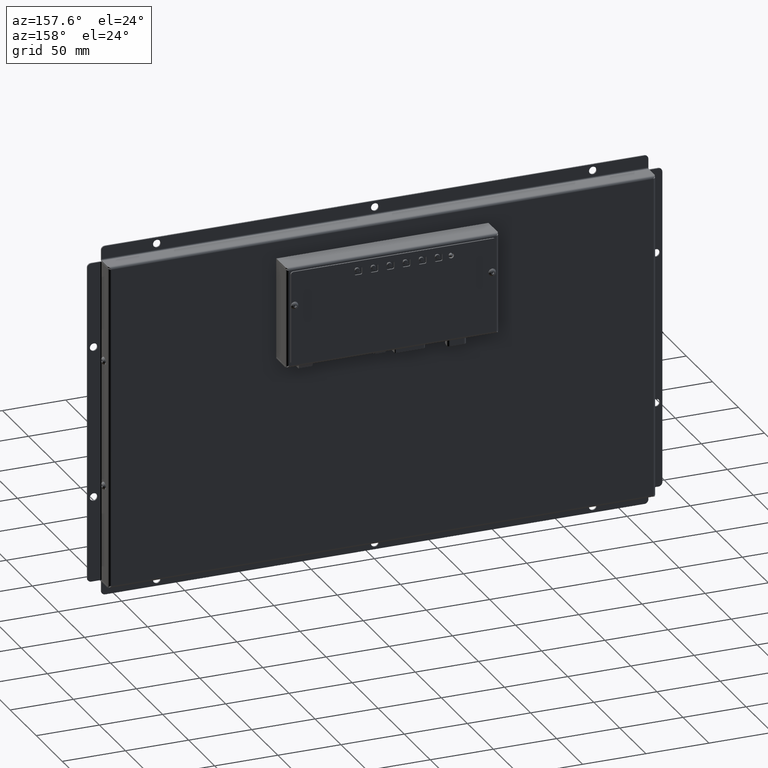
[diagram: clean part render]
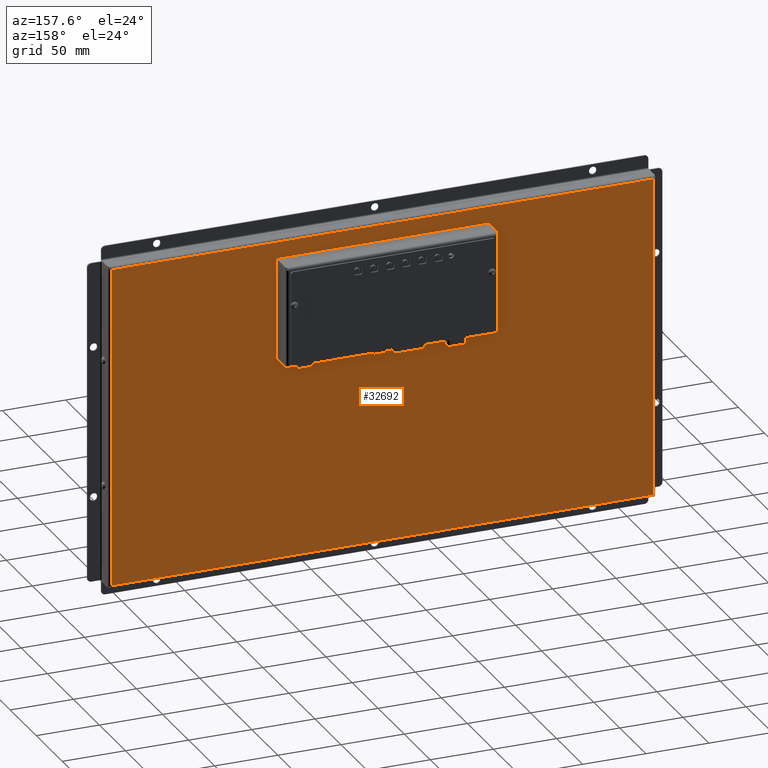
[diagram: same view with one face highlighted and labeled with its STEP entity id]
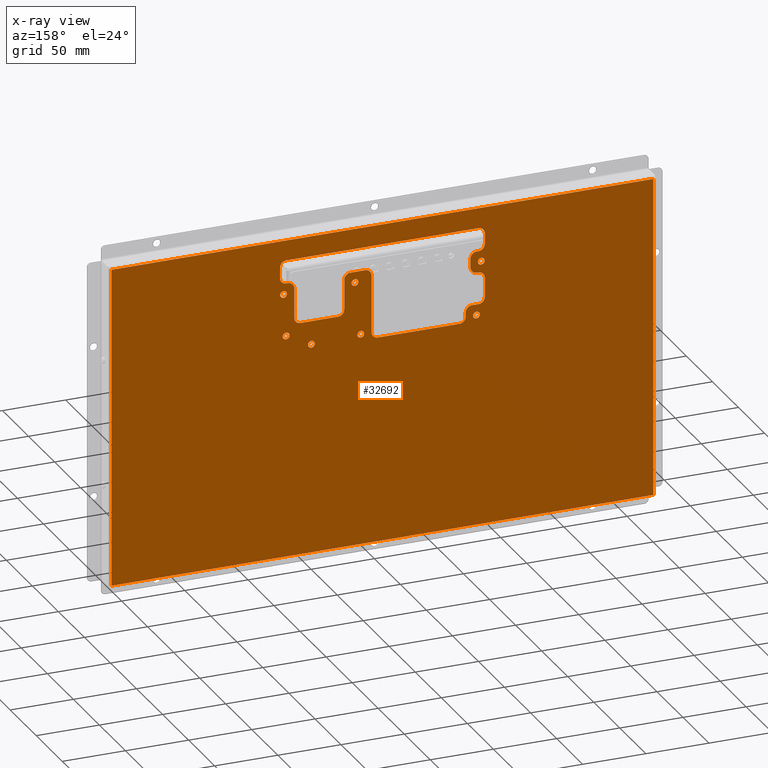
[diagram: x-ray of the same camera — body ghosted, the highlighted face saturated]
A machine part, auxiliary view. The second image highlights one B-rep face of the part: STEP entity #32692.
The next image is the same camera in x-ray: the body ghosted, the highlighted face saturated — about 0% of this face is hidden behind the body in this view.
In plain terms, the highlighted planar face has unit normal (-0, -1, 0).
Its self-contained STEP definition (entity closure, byte-faithful):
#763=FACE_BOUND('',#4955,.T.);
#764=FACE_BOUND('',#4956,.T.);
#765=FACE_BOUND('',#4957,.T.);
#766=FACE_BOUND('',#4958,.T.);
#767=FACE_BOUND('',#4959,.T.);
#768=FACE_BOUND('',#4960,.T.);
#769=FACE_BOUND('',#4961,.T.);
#770=FACE_BOUND('',#4962,.T.);
#1520=CIRCLE('',#34866,2.705);
#1521=CIRCLE('',#34867,2.705);
#1523=CIRCLE('',#34870,2.705);
#1524=CIRCLE('',#34871,2.705);
#1526=CIRCLE('',#34874,2.705);
#1527=CIRCLE('',#34875,2.705);
#1529=CIRCLE('',#34878,2.705);
#1530=CIRCLE('',#34879,2.705);
#1532=CIRCLE('',#34882,2.705);
#1533=CIRCLE('',#34883,2.705);
#1535=CIRCLE('',#34886,2.705);
#1536=CIRCLE('',#34887,2.705);
#1538=CIRCLE('',#34890,2.705);
#1539=CIRCLE('',#34891,2.705);
#1541=CIRCLE('',#34894,5.);
#1543=CIRCLE('',#34898,5.);
#1545=CIRCLE('',#34902,5.);
#1547=CIRCLE('',#34906,5.);
#1549=CIRCLE('',#34910,5.);
#1551=CIRCLE('',#34914,5.);
#1553=CIRCLE('',#34918,5.);
#1555=CIRCLE('',#34922,5.);
#1557=CIRCLE('',#34926,5.);
#1559=CIRCLE('',#34930,5.);
#1561=CIRCLE('',#34934,5.);
#1563=CIRCLE('',#34938,5.);
#1565=CIRCLE('',#34942,5.);
#1567=CIRCLE('',#34946,5.);
#1569=CIRCLE('',#34950,5.);
#1571=CIRCLE('',#34954,5.);
#3062=FACE_OUTER_BOUND('',#4954,.T.);
#4954=EDGE_LOOP('',(#21839,#21840,#21841,#21842));
#4955=EDGE_LOOP('',(#21843,#21844));
#4956=EDGE_LOOP('',(#21845,#21846));
#4957=EDGE_LOOP('',(#21847,#21848));
#4958=EDGE_LOOP('',(#21849,#21850));
#4959=EDGE_LOOP('',(#21851,#21852));
#4960=EDGE_LOOP('',(#21853,#21854));
#4961=EDGE_LOOP('',(#21855,#21856));
#4962=EDGE_LOOP('',(#21857,#21858,#21859,#21860,#21861,#21862,#21863,#21864,
#21865,#21866,#21867,#21868,#21869,#21870,#21871,#21872,#21873,#21874,#21875,
#21876,#21877,#21878,#21879,#21880,#21881,#21882,#21883,#21884,#21885,#21886,
#21887,#21888));
#6934=LINE('',#47327,#10030);
#6938=LINE('',#47339,#10034);
#6942=LINE('',#47351,#10038);
#6946=LINE('',#47363,#10042);
#6950=LINE('',#47375,#10046);
#6954=LINE('',#47387,#10050);
#6958=LINE('',#47399,#10054);
#6962=LINE('',#47411,#10058);
#6966=LINE('',#47423,#10062);
#6970=LINE('',#47435,#10066);
#6974=LINE('',#47447,#10070);
#6978=LINE('',#47459,#10074);
#6982=LINE('',#47471,#10078);
#6986=LINE('',#47483,#10082);
#6990=LINE('',#47495,#10086);
#6994=LINE('',#47506,#10090);
#7168=LINE('',#48034,#10264);
#7175=LINE('',#48250,#10271);
#7184=LINE('',#48524,#10280);
#7185=LINE('',#48526,#10281);
#10030=VECTOR('',#38127,10.);
#10034=VECTOR('',#38139,10.);
#10038=VECTOR('',#38151,10.);
#10042=VECTOR('',#38163,10.);
#10046=VECTOR('',#38175,10.);
#10050=VECTOR('',#38187,10.);
#10054=VECTOR('',#38199,10.);
#10058=VECTOR('',#38211,10.);
#10062=VECTOR('',#38223,10.);
#10066=VECTOR('',#38235,10.);
#10070=VECTOR('',#38247,10.);
#10074=VECTOR('',#38259,10.);
#10078=VECTOR('',#38271,10.);
#10082=VECTOR('',#38283,10.);
#10086=VECTOR('',#38295,10.);
#10090=VECTOR('',#38307,10.);
#10264=VECTOR('',#38845,10.);
#10271=VECTOR('',#38862,10.);
#10280=VECTOR('',#38881,10.);
#10281=VECTOR('',#38884,10.);
#13121=VERTEX_POINT('',#47261);
#13122=VERTEX_POINT('',#47262);
#13124=VERTEX_POINT('',#47269);
#13125=VERTEX_POINT('',#47270);
#13127=VERTEX_POINT('',#47277);
#13128=VERTEX_POINT('',#47278);
#13130=VERTEX_POINT('',#47285);
#13131=VERTEX_POINT('',#47286);
#13133=VERTEX_POINT('',#47293);
#13134=VERTEX_POINT('',#47294);
#13136=VERTEX_POINT('',#47301);
#13137=VERTEX_POINT('',#47302);
#13139=VERTEX_POINT('',#47309);
#13140=VERTEX_POINT('',#47310);
#13142=VERTEX_POINT('',#47317);
#13143=VERTEX_POINT('',#47318);
#13146=VERTEX_POINT('',#47326);
#13148=VERTEX_POINT('',#47332);
#13150=VERTEX_POINT('',#47338);
#13152=VERTEX_POINT('',#47344);
#13154=VERTEX_POINT('',#47350);
#13156=VERTEX_POINT('',#47356);
#13158=VERTEX_POINT('',#47362);
#13160=VERTEX_POINT('',#47368);
#13162=VERTEX_POINT('',#47374);
#13164=VERTEX_POINT('',#47380);
#13166=VERTEX_POINT('',#47386);
#13168=VERTEX_POINT('',#47392);
#13170=VERTEX_POINT('',#47398);
#13172=VERTEX_POINT('',#47404);
#13174=VERTEX_POINT('',#47410);
#13176=VERTEX_POINT('',#47416);
#13178=VERTEX_POINT('',#47422);
#13180=VERTEX_POINT('',#47428);
#13182=VERTEX_POINT('',#47434);
#13184=VERTEX_POINT('',#47440);
#13186=VERTEX_POINT('',#47446);
#13188=VERTEX_POINT('',#47452);
#13190=VERTEX_POINT('',#47458);
#13192=VERTEX_POINT('',#47464);
#13194=VERTEX_POINT('',#47470);
#13196=VERTEX_POINT('',#47476);
#13198=VERTEX_POINT('',#47482);
#13200=VERTEX_POINT('',#47488);
#13202=VERTEX_POINT('',#47494);
#13204=VERTEX_POINT('',#47500);
#13369=VERTEX_POINT('',#48025);
#13370=VERTEX_POINT('',#48033);
#13377=VERTEX_POINT('',#48233);
#13378=VERTEX_POINT('',#48242);
#16263=EDGE_CURVE('',#13121,#13122,#1520,.T.);
#16264=EDGE_CURVE('',#13122,#13121,#1521,.T.);
#16267=EDGE_CURVE('',#13124,#13125,#1523,.T.);
#16268=EDGE_CURVE('',#13125,#13124,#1524,.T.);
#16271=EDGE_CURVE('',#13127,#13128,#1526,.T.);
#16272=EDGE_CURVE('',#13128,#13127,#1527,.T.);
#16275=EDGE_CURVE('',#13130,#13131,#1529,.T.);
#16276=EDGE_CURVE('',#13131,#13130,#1530,.T.);
#16279=EDGE_CURVE('',#13133,#13134,#1532,.T.);
#16280=EDGE_CURVE('',#13134,#13133,#1533,.T.);
#16283=EDGE_CURVE('',#13136,#13137,#1535,.T.);
#16284=EDGE_CURVE('',#13137,#13136,#1536,.T.);
#16287=EDGE_CURVE('',#13139,#13140,#1538,.T.);
#16288=EDGE_CURVE('',#13140,#13139,#1539,.T.);
#16291=EDGE_CURVE('',#13142,#13143,#1541,.T.);
#16295=EDGE_CURVE('',#13146,#13142,#6934,.T.);
#16298=EDGE_CURVE('',#13148,#13146,#1543,.T.);
#16301=EDGE_CURVE('',#13150,#13148,#6938,.T.);
#16304=EDGE_CURVE('',#13152,#13150,#1545,.T.);
#16307=EDGE_CURVE('',#13154,#13152,#6942,.T.);
#16310=EDGE_CURVE('',#13156,#13154,#1547,.T.);
#16313=EDGE_CURVE('',#13158,#13156,#6946,.T.);
#16316=EDGE_CURVE('',#13160,#13158,#1549,.T.);
#16319=EDGE_CURVE('',#13162,#13160,#6950,.T.);
#16322=EDGE_CURVE('',#13164,#13162,#1551,.T.);
#16325=EDGE_CURVE('',#13166,#13164,#6954,.T.);
#16328=EDGE_CURVE('',#13168,#13166,#1553,.T.);
#16331=EDGE_CURVE('',#13170,#13168,#6958,.T.);
#16334=EDGE_CURVE('',#13172,#13170,#1555,.T.);
#16337=EDGE_CURVE('',#13174,#13172,#6962,.T.);
#16340=EDGE_CURVE('',#13176,#13174,#1557,.T.);
#16343=EDGE_CURVE('',#13178,#13176,#6966,.T.);
#16346=EDGE_CURVE('',#13180,#13178,#1559,.T.);
#16349=EDGE_CURVE('',#13182,#13180,#6970,.T.);
#16352=EDGE_CURVE('',#13184,#13182,#1561,.T.);
#16355=EDGE_CURVE('',#13186,#13184,#6974,.T.);
#16358=EDGE_CURVE('',#13188,#13186,#1563,.T.);
#16361=EDGE_CURVE('',#13190,#13188,#6978,.T.);
#16364=EDGE_CURVE('',#13192,#13190,#1565,.T.);
#16367=EDGE_CURVE('',#13194,#13192,#6982,.T.);
#16370=EDGE_CURVE('',#13196,#13194,#1567,.T.);
#16373=EDGE_CURVE('',#13198,#13196,#6986,.T.);
#16376=EDGE_CURVE('',#13200,#13198,#1569,.T.);
#16379=EDGE_CURVE('',#13202,#13200,#6990,.T.);
#16382=EDGE_CURVE('',#13204,#13202,#1571,.T.);
#16385=EDGE_CURVE('',#13143,#13204,#6994,.T.);
#16644=EDGE_CURVE('',#13370,#13369,#7168,.T.);
#16663=EDGE_CURVE('',#13377,#13378,#7175,.T.);
#16683=EDGE_CURVE('',#13378,#13370,#7184,.T.);
#16684=EDGE_CURVE('',#13369,#13377,#7185,.T.);
#21839=ORIENTED_EDGE('',*,*,#16683,.T.);
#21840=ORIENTED_EDGE('',*,*,#16644,.T.);
#21841=ORIENTED_EDGE('',*,*,#16684,.T.);
#21842=ORIENTED_EDGE('',*,*,#16663,.T.);
#21843=ORIENTED_EDGE('',*,*,#16263,.T.);
#21844=ORIENTED_EDGE('',*,*,#16264,.T.);
#21845=ORIENTED_EDGE('',*,*,#16267,.T.);
#21846=ORIENTED_EDGE('',*,*,#16268,.T.);
#21847=ORIENTED_EDGE('',*,*,#16271,.T.);
#21848=ORIENTED_EDGE('',*,*,#16272,.T.);
#21849=ORIENTED_EDGE('',*,*,#16275,.T.);
#21850=ORIENTED_EDGE('',*,*,#16276,.T.);
#21851=ORIENTED_EDGE('',*,*,#16279,.T.);
#21852=ORIENTED_EDGE('',*,*,#16280,.T.);
#21853=ORIENTED_EDGE('',*,*,#16283,.T.);
#21854=ORIENTED_EDGE('',*,*,#16284,.T.);
#21855=ORIENTED_EDGE('',*,*,#16287,.T.);
#21856=ORIENTED_EDGE('',*,*,#16288,.T.);
#21857=ORIENTED_EDGE('',*,*,#16291,.T.);
#21858=ORIENTED_EDGE('',*,*,#16385,.T.);
#21859=ORIENTED_EDGE('',*,*,#16382,.T.);
#21860=ORIENTED_EDGE('',*,*,#16379,.T.);
#21861=ORIENTED_EDGE('',*,*,#16376,.T.);
#21862=ORIENTED_EDGE('',*,*,#16373,.T.);
#21863=ORIENTED_EDGE('',*,*,#16370,.T.);
#21864=ORIENTED_EDGE('',*,*,#16367,.T.);
#21865=ORIENTED_EDGE('',*,*,#16364,.T.);
#21866=ORIENTED_EDGE('',*,*,#16361,.T.);
#21867=ORIENTED_EDGE('',*,*,#16358,.T.);
#21868=ORIENTED_EDGE('',*,*,#16355,.T.);
#21869=ORIENTED_EDGE('',*,*,#16352,.T.);
#21870=ORIENTED_EDGE('',*,*,#16349,.T.);
#21871=ORIENTED_EDGE('',*,*,#16346,.T.);
#21872=ORIENTED_EDGE('',*,*,#16343,.T.);
#21873=ORIENTED_EDGE('',*,*,#16340,.T.);
#21874=ORIENTED_EDGE('',*,*,#16337,.T.);
#21875=ORIENTED_EDGE('',*,*,#16334,.T.);
#21876=ORIENTED_EDGE('',*,*,#16331,.T.);
#21877=ORIENTED_EDGE('',*,*,#16328,.T.);
#21878=ORIENTED_EDGE('',*,*,#16325,.T.);
#21879=ORIENTED_EDGE('',*,*,#16322,.T.);
#21880=ORIENTED_EDGE('',*,*,#16319,.T.);
#21881=ORIENTED_EDGE('',*,*,#16316,.T.);
#21882=ORIENTED_EDGE('',*,*,#16313,.T.);
#21883=ORIENTED_EDGE('',*,*,#16310,.T.);
#21884=ORIENTED_EDGE('',*,*,#16307,.T.);
#21885=ORIENTED_EDGE('',*,*,#16304,.T.);
#21886=ORIENTED_EDGE('',*,*,#16301,.T.);
#21887=ORIENTED_EDGE('',*,*,#16298,.T.);
#21888=ORIENTED_EDGE('',*,*,#16295,.T.);
#30325=PLANE('',#35151);
#32692=ADVANCED_FACE('',(#3062,#763,#764,#765,#766,#767,#768,#769,#770),
#30325,.F.);
#34866=AXIS2_PLACEMENT_3D('',#47263,#38056,#38057);
#34867=AXIS2_PLACEMENT_3D('',#47264,#38058,#38059);
#34870=AXIS2_PLACEMENT_3D('',#47271,#38065,#38066);
#34871=AXIS2_PLACEMENT_3D('',#47272,#38067,#38068);
#34874=AXIS2_PLACEMENT_3D('',#47279,#38074,#38075);
#34875=AXIS2_PLACEMENT_3D('',#47280,#38076,#38077);
#34878=AXIS2_PLACEMENT_3D('',#47287,#38083,#38084);
#34879=AXIS2_PLACEMENT_3D('',#47288,#38085,#38086);
#34882=AXIS2_PLACEMENT_3D('',#47295,#38092,#38093);
#34883=AXIS2_PLACEMENT_3D('',#47296,#38094,#38095);
#34886=AXIS2_PLACEMENT_3D('',#47303,#38101,#38102);
#34887=AXIS2_PLACEMENT_3D('',#47304,#38103,#38104);
#34890=AXIS2_PLACEMENT_3D('',#47311,#38110,#38111);
#34891=AXIS2_PLACEMENT_3D('',#47312,#38112,#38113);
#34894=AXIS2_PLACEMENT_3D('',#47319,#38119,#38120);
#34898=AXIS2_PLACEMENT_3D('',#47333,#38132,#38133);
#34902=AXIS2_PLACEMENT_3D('',#47345,#38144,#38145);
#34906=AXIS2_PLACEMENT_3D('',#47357,#38156,#38157);
#34910=AXIS2_PLACEMENT_3D('',#47369,#38168,#38169);
#34914=AXIS2_PLACEMENT_3D('',#47381,#38180,#38181);
#34918=AXIS2_PLACEMENT_3D('',#47393,#38192,#38193);
#34922=AXIS2_PLACEMENT_3D('',#47405,#38204,#38205);
#34926=AXIS2_PLACEMENT_3D('',#47417,#38216,#38217);
#34930=AXIS2_PLACEMENT_3D('',#47429,#38228,#38229);
#34934=AXIS2_PLACEMENT_3D('',#47441,#38240,#38241);
#34938=AXIS2_PLACEMENT_3D('',#47453,#38252,#38253);
#34942=AXIS2_PLACEMENT_3D('',#47465,#38264,#38265);
#34946=AXIS2_PLACEMENT_3D('',#47477,#38276,#38277);
#34950=AXIS2_PLACEMENT_3D('',#47489,#38288,#38289);
#34954=AXIS2_PLACEMENT_3D('',#47501,#38300,#38301);
#35151=AXIS2_PLACEMENT_3D('',#48528,#38887,#38888);
#38056=DIRECTION('center_axis',(0.,0.,1.));
#38057=DIRECTION('ref_axis',(-1.,0.,0.));
#38058=DIRECTION('center_axis',(0.,0.,1.));
#38059=DIRECTION('ref_axis',(-1.,0.,0.));
#38065=DIRECTION('center_axis',(0.,0.,1.));
#38066=DIRECTION('ref_axis',(-1.,0.,0.));
#38067=DIRECTION('center_axis',(0.,0.,1.));
#38068=DIRECTION('ref_axis',(-1.,0.,0.));
#38074=DIRECTION('center_axis',(0.,0.,1.));
#38075=DIRECTION('ref_axis',(-1.,0.,0.));
#38076=DIRECTION('center_axis',(0.,0.,1.));
#38077=DIRECTION('ref_axis',(-1.,0.,0.));
#38083=DIRECTION('center_axis',(0.,0.,1.));
#38084=DIRECTION('ref_axis',(-1.,0.,0.));
#38085=DIRECTION('center_axis',(0.,0.,1.));
#38086=DIRECTION('ref_axis',(-1.,0.,0.));
#38092=DIRECTION('center_axis',(0.,0.,1.));
#38093=DIRECTION('ref_axis',(-1.,0.,0.));
#38094=DIRECTION('center_axis',(0.,0.,1.));
#38095=DIRECTION('ref_axis',(-1.,0.,0.));
#38101=DIRECTION('center_axis',(0.,0.,1.));
#38102=DIRECTION('ref_axis',(-1.,0.,0.));
#38103=DIRECTION('center_axis',(0.,0.,1.));
#38104=DIRECTION('ref_axis',(-1.,0.,0.));
#38110=DIRECTION('center_axis',(0.,0.,1.));
#38111=DIRECTION('ref_axis',(-1.,0.,0.));
#38112=DIRECTION('center_axis',(0.,0.,1.));
#38113=DIRECTION('ref_axis',(-1.,0.,0.));
#38119=DIRECTION('center_axis',(0.,0.,1.));
#38120=DIRECTION('ref_axis',(-1.,0.,0.));
#38127=DIRECTION('',(-1.,-3.01077430406827E-16,0.));
#38132=DIRECTION('center_axis',(0.,0.,1.));
#38133=DIRECTION('ref_axis',(0.,1.,0.));
#38139=DIRECTION('',(3.7634678800853E-16,1.,0.));
#38144=DIRECTION('center_axis',(0.,0.,-1.));
#38145=DIRECTION('ref_axis',(0.,1.,0.));
#38151=DIRECTION('',(-1.,3.0626842058625E-15,0.));
#38156=DIRECTION('center_axis',(0.,0.,-1.));
#38157=DIRECTION('ref_axis',(-1.,0.,0.));
#38163=DIRECTION('',(-1.70428973078424E-16,-1.,0.));
#38168=DIRECTION('center_axis',(0.,0.,1.));
#38169=DIRECTION('ref_axis',(-1.,-1.77635683940025E-15,0.));
#38175=DIRECTION('',(-1.,1.37702080573663E-16,0.));
#38180=DIRECTION('center_axis',(0.,0.,1.));
#38181=DIRECTION('ref_axis',(0.,1.,0.));
#38187=DIRECTION('',(-2.77555756156288E-15,1.,0.));
#38192=DIRECTION('center_axis',(0.,0.,-1.));
#38193=DIRECTION('ref_axis',(0.,1.,0.));
#38199=DIRECTION('',(-1.,0.,0.));
#38204=DIRECTION('center_axis',(0.,0.,1.));
#38205=DIRECTION('ref_axis',(0.,1.,0.));
#38211=DIRECTION('',(0.,1.,0.));
#38216=DIRECTION('center_axis',(0.,0.,1.));
#38217=DIRECTION('ref_axis',(1.,0.,0.));
#38223=DIRECTION('',(1.,0.,0.));
#38228=DIRECTION('center_axis',(0.,0.,-1.));
#38229=DIRECTION('ref_axis',(1.,0.,0.));
#38235=DIRECTION('',(2.53765262771462E-15,1.,0.));
#38240=DIRECTION('center_axis',(0.,0.,-1.));
#38241=DIRECTION('ref_axis',(0.,1.,0.));
#38247=DIRECTION('',(-1.,1.3664283380001E-14,0.));
#38252=DIRECTION('center_axis',(0.,0.,1.));
#38253=DIRECTION('ref_axis',(0.,1.,0.));
#38259=DIRECTION('',(4.22942104619113E-15,1.,0.));
#38264=DIRECTION('center_axis',(0.,0.,1.));
#38265=DIRECTION('ref_axis',(1.,0.,0.));
#38271=DIRECTION('',(1.,0.,0.));
#38276=DIRECTION('center_axis',(0.,0.,1.));
#38277=DIRECTION('ref_axis',(0.,-1.,0.));
#38283=DIRECTION('',(0.,-1.,0.));
#38288=DIRECTION('center_axis',(0.,0.,1.));
#38289=DIRECTION('ref_axis',(-1.,0.,0.));
#38295=DIRECTION('',(-1.,0.,0.));
#38300=DIRECTION('center_axis',(0.,0.,-1.));
#38301=DIRECTION('ref_axis',(-1.,0.,0.));
#38307=DIRECTION('',(-3.7634678800853E-16,-1.,0.));
#38845=DIRECTION('',(1.,2.47346044010246E-16,0.));
#38862=DIRECTION('',(-1.,-8.24486813367487E-17,0.));
#38881=DIRECTION('',(0.,1.,0.));
#38884=DIRECTION('',(0.,-1.,0.));
#38887=DIRECTION('center_axis',(0.,0.,1.));
#38888=DIRECTION('ref_axis',(1.,0.,0.));
#47261=CARTESIAN_POINT('',(-78.9050000000003,-50.0500000000002,0.));
#47262=CARTESIAN_POINT('',(-73.4950000000003,-50.0500000000002,0.));
#47263=CARTESIAN_POINT('Origin',(-76.2000000000003,-50.0500000000002,0.));
#47264=CARTESIAN_POINT('Origin',(-76.2000000000003,-50.0500000000002,0.));
#47269=CARTESIAN_POINT('',(-19.8050000000004,-41.4500000000002,0.));
#47270=CARTESIAN_POINT('',(-14.3950000000004,-41.4500000000002,0.));
#47271=CARTESIAN_POINT('Origin',(-17.1000000000004,-41.4500000000002,0.));
#47272=CARTESIAN_POINT('Origin',(-17.1000000000004,-41.4500000000002,0.));
#47277=CARTESIAN_POINT('',(75.4949999999996,-83.7500000000002,0.));
#47278=CARTESIAN_POINT('',(80.9049999999996,-83.7500000000002,0.));
#47279=CARTESIAN_POINT('Origin',(78.1999999999996,-83.7500000000002,0.));
#47280=CARTESIAN_POINT('Origin',(78.1999999999996,-83.7500000000002,0.));
#47285=CARTESIAN_POINT('',(71.6949999999996,-41.2500000000002,0.));
#47286=CARTESIAN_POINT('',(77.1049999999995,-41.2500000000002,0.));
#47287=CARTESIAN_POINT('Origin',(74.3999999999996,-41.2500000000002,0.));
#47288=CARTESIAN_POINT('Origin',(74.3999999999996,-41.2500000000002,0.));
#47293=CARTESIAN_POINT('',(-24.4050000000004,-83.6500000000002,0.));
#47294=CARTESIAN_POINT('',(-18.9950000000004,-83.6500000000002,0.));
#47295=CARTESIAN_POINT('Origin',(-21.7000000000004,-83.6500000000002,0.));
#47296=CARTESIAN_POINT('Origin',(-21.7000000000004,-83.6500000000002,0.));
#47301=CARTESIAN_POINT('',(-58.9050000000004,-40.0500000000002,0.));
#47302=CARTESIAN_POINT('',(-53.4950000000004,-40.0500000000002,0.));
#47303=CARTESIAN_POINT('Origin',(-56.2000000000004,-40.0500000000002,0.));
#47304=CARTESIAN_POINT('Origin',(-56.2000000000004,-40.0500000000002,0.));
#47309=CARTESIAN_POINT('',(-80.9049999999999,-83.6500000000001,0.));
#47310=CARTESIAN_POINT('',(-75.4949999999999,-83.6500000000001,0.));
#47311=CARTESIAN_POINT('Origin',(-78.1999999999999,-83.6500000000001,0.));
#47312=CARTESIAN_POINT('Origin',(-78.1999999999999,-83.6500000000001,0.));
#47317=CARTESIAN_POINT('',(-64.6999999999999,-58.5500000000003,0.));
#47318=CARTESIAN_POINT('',(-69.6999999999999,-63.5500000000003,0.));
#47319=CARTESIAN_POINT('Origin',(-64.6999999999999,-63.5500000000003,0.));
#47326=CARTESIAN_POINT('',(-35.2000000000005,-58.5500000000003,0.));
#47327=CARTESIAN_POINT('',(-17.6000000000002,-58.5500000000003,0.));
#47332=CARTESIAN_POINT('',(-30.2000000000005,-63.5500000000003,0.));
#47333=CARTESIAN_POINT('Origin',(-35.2000000000005,-63.5500000000003,0.));
#47338=CARTESIAN_POINT('',(-30.2000000000005,-87.1500000000001,0.));
#47339=CARTESIAN_POINT('',(-30.2000000000005,-43.5750000000001,0.));
#47344=CARTESIAN_POINT('',(-25.2000000000005,-92.1500000000001,0.));
#47345=CARTESIAN_POINT('Origin',(-25.2000000000005,-87.1500000000001,0.));
#47350=CARTESIAN_POINT('',(-13.6000000000005,-92.1500000000001,0.));
#47351=CARTESIAN_POINT('',(-6.80000000000035,-92.1500000000002,0.));
#47356=CARTESIAN_POINT('',(-8.60000000000047,-87.1500000000001,0.));
#47357=CARTESIAN_POINT('Origin',(-13.6000000000005,-87.1500000000001,0.));
#47362=CARTESIAN_POINT('',(-8.60000000000046,-41.5500000000002,0.));
#47363=CARTESIAN_POINT('',(-8.60000000000046,-20.7750000000001,0.));
#47368=CARTESIAN_POINT('',(-3.60000000000046,-36.5500000000002,0.));
#47369=CARTESIAN_POINT('Origin',(-3.60000000000046,-41.5500000000002,0.));
#47374=CARTESIAN_POINT('',(60.8999999999996,-36.5500000000002,0.));
#47375=CARTESIAN_POINT('',(30.4499999999998,-36.5500000000002,0.));
#47380=CARTESIAN_POINT('',(65.8999999999996,-41.5500000000002,0.));
#47381=CARTESIAN_POINT('Origin',(60.8999999999996,-41.5500000000002,0.));
#47386=CARTESIAN_POINT('',(65.8999999999996,-44.7500000000002,0.));
#47387=CARTESIAN_POINT('',(65.8999999999995,-22.375,0.));
#47392=CARTESIAN_POINT('',(70.8999999999996,-49.7500000000002,0.));
#47393=CARTESIAN_POINT('Origin',(70.8999999999996,-44.7500000000002,0.));
#47398=CARTESIAN_POINT('',(75.9999999999998,-49.7500000000002,0.));
#47399=CARTESIAN_POINT('',(37.9999999999999,-49.7500000000002,0.));
#47404=CARTESIAN_POINT('',(80.9999999999998,-54.7500000000002,0.));
#47405=CARTESIAN_POINT('Origin',(75.9999999999998,-54.7500000000002,0.));
#47410=CARTESIAN_POINT('',(80.9999999999998,-70.1500000000001,0.));
#47411=CARTESIAN_POINT('',(80.9999999999998,-35.0750000000001,0.));
#47416=CARTESIAN_POINT('',(75.9999999999998,-75.1500000000001,0.));
#47417=CARTESIAN_POINT('Origin',(75.9999999999998,-70.1500000000001,0.));
#47422=CARTESIAN_POINT('',(74.6999999999997,-75.1500000000001,0.));
#47423=CARTESIAN_POINT('',(37.3499999999999,-75.1500000000001,0.));
#47428=CARTESIAN_POINT('',(69.6999999999997,-80.1500000000001,0.));
#47429=CARTESIAN_POINT('Origin',(74.6999999999997,-80.1500000000001,0.));
#47434=CARTESIAN_POINT('',(69.6999999999997,-87.1500000000002,0.));
#47435=CARTESIAN_POINT('',(69.6999999999998,-43.5750000000002,0.));
#47440=CARTESIAN_POINT('',(74.6999999999997,-92.1500000000001,0.));
#47441=CARTESIAN_POINT('Origin',(74.6999999999997,-87.1500000000002,0.));
#47446=CARTESIAN_POINT('',(75.9999999999998,-92.1500000000002,0.));
#47447=CARTESIAN_POINT('',(37.9999999999993,-92.1499999999996,0.));
#47452=CARTESIAN_POINT('',(80.9999999999998,-97.1500000000001,0.));
#47453=CARTESIAN_POINT('Origin',(75.9999999999998,-97.1500000000002,0.));
#47458=CARTESIAN_POINT('',(80.9999999999998,-105.55,0.));
#47459=CARTESIAN_POINT('',(81.,-52.7750000000002,0.));
#47464=CARTESIAN_POINT('',(75.9999999999998,-110.55,0.));
#47465=CARTESIAN_POINT('Origin',(75.9999999999998,-105.55,0.));
#47470=CARTESIAN_POINT('',(-75.9999999999998,-110.55,0.));
#47471=CARTESIAN_POINT('',(-37.9999999999999,-110.55,0.));
#47476=CARTESIAN_POINT('',(-80.9999999999998,-105.55,0.));
#47477=CARTESIAN_POINT('Origin',(-75.9999999999998,-105.55,0.));
#47482=CARTESIAN_POINT('',(-80.9999999999998,-97.1500000000001,0.));
#47483=CARTESIAN_POINT('',(-80.9999999999998,-48.5750000000001,0.));
#47488=CARTESIAN_POINT('',(-75.9999999999998,-92.1500000000001,0.));
#47489=CARTESIAN_POINT('Origin',(-75.9999999999998,-97.1500000000001,0.));
#47494=CARTESIAN_POINT('',(-74.6999999999999,-92.1500000000001,0.));
#47495=CARTESIAN_POINT('',(-37.35,-92.1500000000001,0.));
#47500=CARTESIAN_POINT('',(-69.6999999999999,-87.1500000000001,0.));
#47501=CARTESIAN_POINT('Origin',(-74.6999999999999,-87.1500000000001,0.));
#47506=CARTESIAN_POINT('',(-69.6999999999999,-31.7750000000001,0.));
#48025=CARTESIAN_POINT('',(214.45,126.55,-1.38777878078145E-16));
#48033=CARTESIAN_POINT('',(-214.45,126.55,0.));
#48034=CARTESIAN_POINT('',(-107.725,126.55,0.));
#48233=CARTESIAN_POINT('',(214.45,-126.55,-1.38777878078145E-16));
#48242=CARTESIAN_POINT('',(-214.45,-126.55,0.));
#48250=CARTESIAN_POINT('',(107.725,-126.55,0.));
#48524=CARTESIAN_POINT('',(-214.45,-63.275,0.));
#48526=CARTESIAN_POINT('',(214.45,63.2750000000001,0.));
#48528=CARTESIAN_POINT('Origin',(4.44089209850063E-14,-1.3559963294457E-14,
0.));